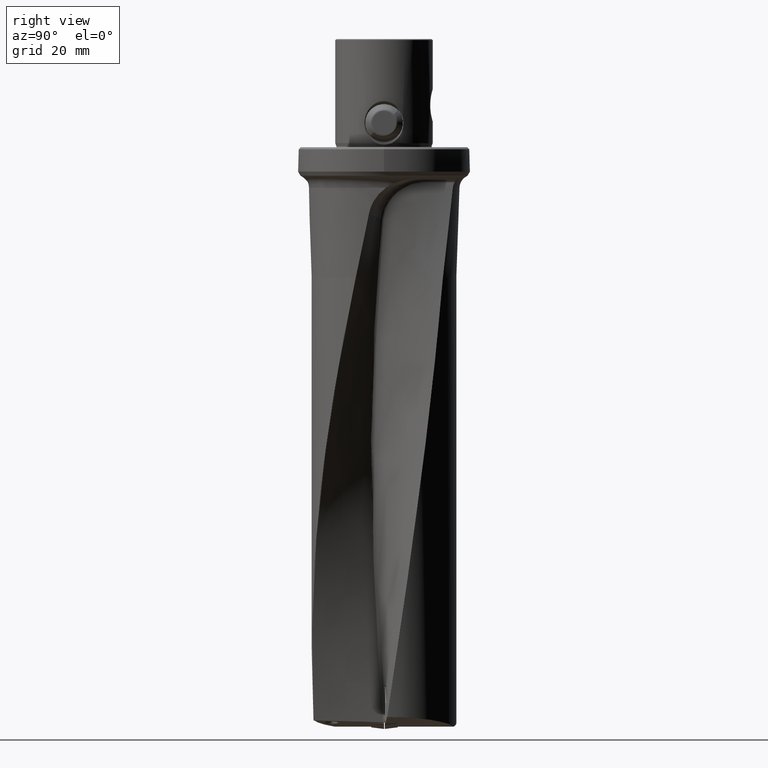
[diagram: clean part render]
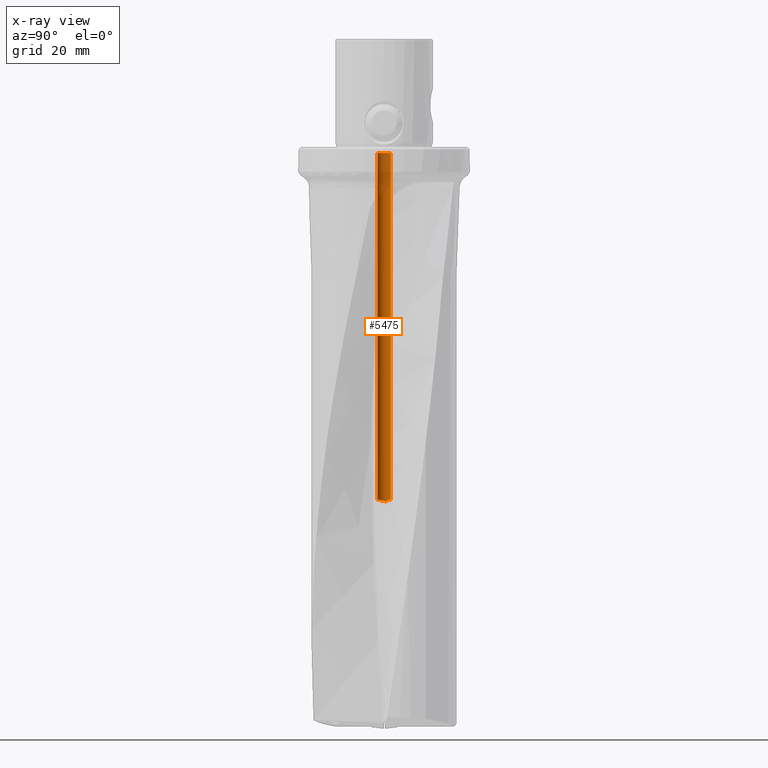
[diagram: x-ray — body ghosted, one internal face saturated and labeled with its STEP entity id]
A machine part, right view, then the same camera in x-ray: the body is ghosted and one INTERNAL B-rep face — a face not visible from any outside direction — is saturated and labeled: STEP entity #5475.
In plain terms, the highlighted cylindrical surface (edge-blend (fillet) strip) has radius 2.5 mm, axis along (-0, -0, 1).
Its self-contained STEP definition (entity closure, byte-faithful):
#2191=EDGE_CURVE('NONE',#5415,#3059,#5896,.T.);
#2845=EDGE_CURVE('NONE',#3185,#4545,#6624,.T.);
#2871=EDGE_CURVE('NONE',#4965,#4249,#6651,.T.);
#3059=VERTEX_POINT('NONE',#6862);
#3065=EDGE_CURVE('NONE',#4249,#3059,#6868,.T.);
#3145=EDGE_CURVE('NONE',#4545,#4131,#6956,.T.);
#3185=VERTEX_POINT('NONE',#6998);
#4131=VERTEX_POINT('NONE',#8063);
#4249=VERTEX_POINT('NONE',#8191);
#4545=VERTEX_POINT('NONE',#8521);
#4803=EDGE_CURVE('NONE',#4131,#4965,#8805,.T.);
#4965=VERTEX_POINT('NONE',#8979);
#5415=VERTEX_POINT('NONE',#9470);
#5461=EDGE_CURVE('NONE',#5415,#3185,#9518,.T.);
#5475=ADVANCED_FACE('NONE',(#9534),#9535,.F.);
#5896=LINE('',#12171,#12172);
#6624=B_SPLINE_CURVE_WITH_KNOTS('',3,(#19238,#19239,#19240,#19241,#19242,#19243),.UNSPECIFIED.,.F.,.F.,(4,2,4),(0.00211489130368104,0.00248073890564775,0.00284658650761447),.UNSPECIFIED.);
#6651=CIRCLE('',#19318,2.5);
#6862=CARTESIAN_POINT('',(0.0,2.5,-2.1754264805429));
#6868=CIRCLE('',#22409,2.5);
#6956=B_SPLINE_CURVE_WITH_KNOTS('',3,(#22619,#22620,#22621,#22622,#22623,#22624,#22625,#22626,#22627,#22628,#22629,#22630,#22631,#22632),.UNSPECIFIED.,.F.,.F.,(4,2,2,2,2,2,4),(0.00284658650761447,0.00333803906480054,0.00382949162198661,0.00432094417917268,0.00481239673635875,0.00579530185073091,0.00677820696510306),.UNSPECIFIED.);
#6998=CARTESIAN_POINT('',(-2.42481662507987,0.608493496050869,-130.962608284753));
#8063=CARTESIAN_POINT('',(5.45845512106876E-015,-2.5,-130.0));
#8191=CARTESIAN_POINT('',(-2.5,1.31445351022989E-014,-2.1754264805429));
#8521=CARTESIAN_POINT('',(-2.49912114402047,-0.0662835387544654,-130.714297174059));
#8805=LINE('',#53037,#53038);
#8979=CARTESIAN_POINT('',(-3.06151588455594E-016,-2.5,-2.1754264805429));
#9470=CARTESIAN_POINT('',(-1.85615572385848E-011,2.5,-130.000000000003));
#9518=B_SPLINE_CURVE_WITH_KNOTS('',3,(#75294,#75295,#75296,#75297,#75298,#75299,#75300,#75301,#75302,#75303,#75304,#75305),.UNSPECIFIED.,.F.,.F.,(4,2,2,2,2,4),(0.0061347931367678,0.00700498937924093,0.00787518562171407,0.00874538186418721,0.00918047998542378,0.00961557810666035),.UNSPECIFIED.);
#9534=FACE_OUTER_BOUND('',#75327,.T.);
#9535=CYLINDRICAL_SURFACE('',#75328,2.5);
#12171=CARTESIAN_POINT('',(0.0,2.5,3.30421507524906));
#12172=VECTOR('',#75821,1000.0);
#19238=CARTESIAN_POINT('',(-2.42481662507987,0.608493496050869,-130.962608284753));
#19239=CARTESIAN_POINT('',(-2.44800453783426,0.516090805286571,-130.886982345973));
#19240=CARTESIAN_POINT('',(-2.47002271147342,0.402993633947993,-130.838959423215));
#19241=CARTESIAN_POINT('',(-2.49670355639326,0.172879772357302,-130.765026710273));
#19242=CARTESIAN_POINT('',(-2.50228896601463,0.0531544254043318,-130.738219219039));
#19243=CARTESIAN_POINT('',(-2.49912114402047,-0.0662835387544654,-130.714297174059));
#19318=AXIS2_PLACEMENT_3D('',#76691,#76692,#76693);
#22409=AXIS2_PLACEMENT_3D('',#76965,#76966,#76967);
#22619=CARTESIAN_POINT('',(-2.49912114402047,-0.0662835387544654,-130.714297174059));
#22620=CARTESIAN_POINT('',(-2.49486572670636,-0.226727648803032,-130.682162071586));
#22621=CARTESIAN_POINT('',(-2.4750253633296,-0.387885192260184,-130.655466624643));
#22622=CARTESIAN_POINT('',(-2.40433381105385,-0.703835489672716,-130.602362204049));
#22623=CARTESIAN_POINT('',(-2.35352518276001,-0.85842725867987,-130.576326293785));
#22624=CARTESIAN_POINT('',(-2.22381222791838,-1.15353253932903,-130.522646916689));
#22625=CARTESIAN_POINT('',(-2.14559355809939,-1.29308670958375,-130.495289475034));
#22626=CARTESIAN_POINT('',(-1.96307453865048,-1.55627224827854,-130.438033490061));
#22627=CARTESIAN_POINT('',(-1.85819515180859,-1.68016123676199,-130.408040383368));
#22628=CARTESIAN_POINT('',(-1.51254103269668,-2.01631932969435,-130.315789484415));
#22629=CARTESIAN_POINT('',(-1.23912545899282,-2.19500144724506,-130.250656136402));
#22630=CARTESIAN_POINT('',(-0.643136124194004,-2.4371785290144,-130.121042031531));
#22631=CARTESIAN_POINT('',(-0.322410798518454,-2.5,-130.056849722651));
#22632=CARTESIAN_POINT('',(5.45845512106876E-015,-2.5,-130.0));
#53037=CARTESIAN_POINT('',(-3.06151588455594E-016,-2.5,3.30421507524906));
#53038=VECTOR('',#79265,1000.0);
#75294=CARTESIAN_POINT('',(-1.85615572385848E-011,2.5,-130.000000000003));
#75295=CARTESIAN_POINT('',(-0.285452803361463,2.49999999999788,-130.050333030952));
#75296=CARTESIAN_POINT('',(-0.570351282311708,2.45057385339726,-130.106339670726));
#75297=CARTESIAN_POINT('',(-1.10535913101317,2.26026414112925,-130.224457979184));
#75298=CARTESIAN_POINT('',(-1.35595323305423,2.11926474623529,-130.286439234653));
#75299=CARTESIAN_POINT('',(-1.79488856661642,1.76302786940411,-130.417884319568));
#75300=CARTESIAN_POINT('',(-1.98291383660361,1.54760034320799,-130.485481361339));
#75301=CARTESIAN_POINT('',(-2.20126094684679,1.19319058423626,-130.6140528));
#75302=CARTESIAN_POINT('',(-2.26284381228927,1.07083827267031,-130.661191341883));
#75303=CARTESIAN_POINT('',(-2.36235715618222,0.828507930961439,-130.782471248145));
#75304=CARTESIAN_POINT('',(-2.40008061042599,0.707065296670254,-130.858280709219));
#75305=CARTESIAN_POINT('',(-2.42481662507987,0.608493496050869,-130.962608284753));
#75327=EDGE_LOOP('',(#80015,#80016,#80017,#80018,#80019,#80020,#80021));
#75328=AXIS2_PLACEMENT_3D('',#80022,#80023,#80024);
#75821=DIRECTION('',(0.0,-0.0,1.0));
#76691=CARTESIAN_POINT('',(0.0,0.0,-2.17542648054292));
#76692=DIRECTION('',(0.0,0.0,-1.0));
#76693=DIRECTION('',(0.0,1.0,0.0));
#76965=CARTESIAN_POINT('',(0.0,0.0,-2.17542648054292));
#76966=DIRECTION('',(0.0,0.0,-1.0));
#76967=DIRECTION('',(0.0,1.0,0.0));
#79265=DIRECTION('',(0.0,-0.0,1.0));
#80015=ORIENTED_EDGE('',*,*,#4803,.F.);
#80016=ORIENTED_EDGE('',*,*,#3145,.F.);
#80017=ORIENTED_EDGE('',*,*,#2845,.F.);
#80018=ORIENTED_EDGE('',*,*,#5461,.F.);
#80019=ORIENTED_EDGE('',*,*,#2191,.T.);
#80020=ORIENTED_EDGE('',*,*,#3065,.F.);
#80021=ORIENTED_EDGE('',*,*,#2871,.F.);
#80022=CARTESIAN_POINT('',(0.0,0.0,3.30421507524906));
#80023=DIRECTION('',(-0.0,-0.0,1.0));
#80024=DIRECTION('',(0.0,1.0,0.0));